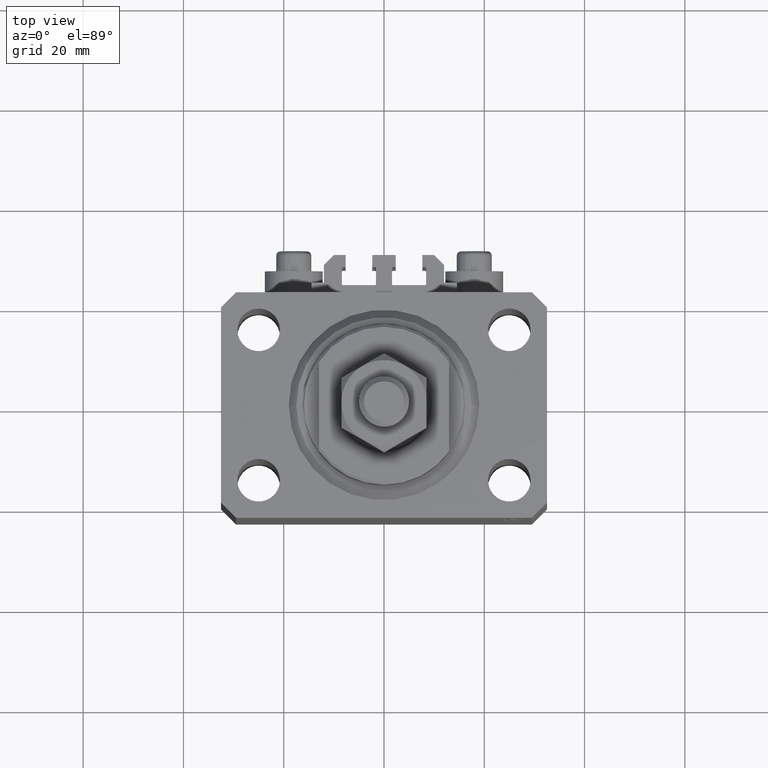
[diagram: clean part render]
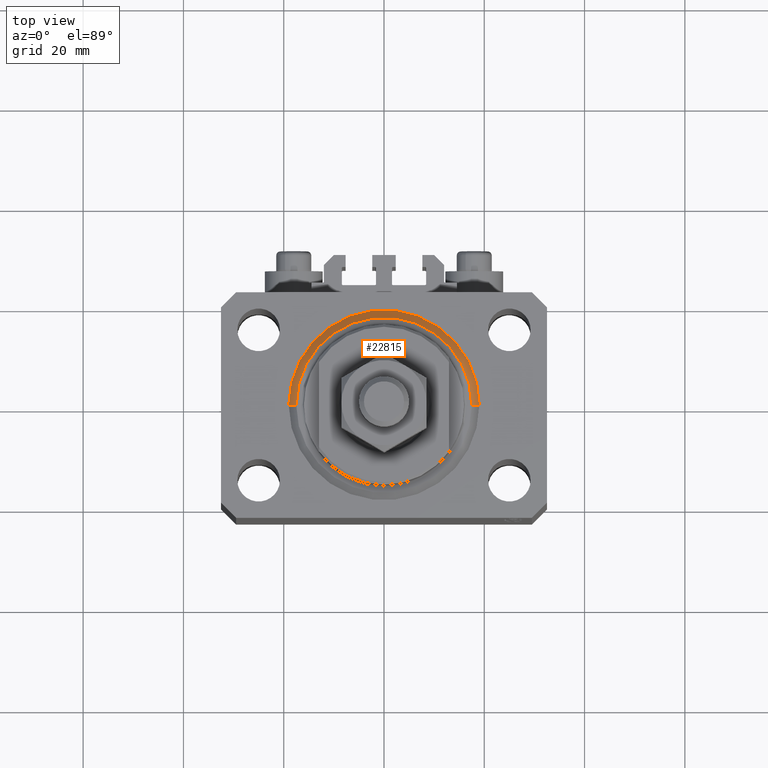
[diagram: same view with one face highlighted and labeled with its STEP entity id]
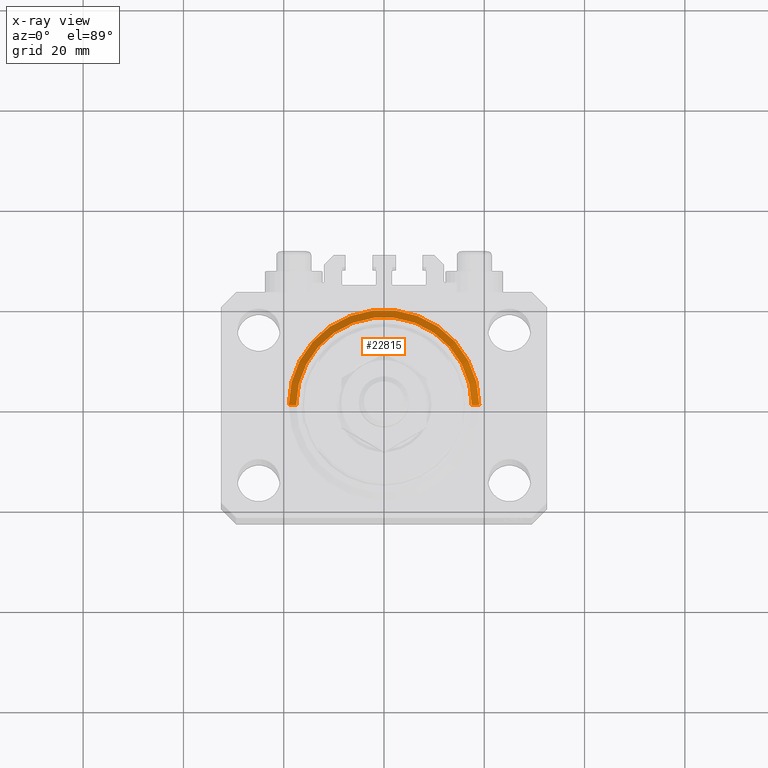
[diagram: x-ray of the same camera — body ghosted, the highlighted face saturated]
A machine part, top view. The second image highlights one B-rep face of the part: STEP entity #22815.
The next image is the same camera in x-ray: the body ghosted, the highlighted face saturated — about 0% of this face is hidden behind the body in this view.
In plain terms, the highlighted conical surface has half-angle 45 deg.
Its self-contained STEP definition (entity closure, byte-faithful):
#474 = VECTOR ( 'NONE', #24404, 1000.000000000000000 ) ;
#3435 = CARTESIAN_POINT ( 'NONE',  ( -19.00000000000000000, 0.000000000000000000, 1.500000000000001332 ) ) ;
#3512 = LINE ( 'NONE', #45876, #22213 ) ;
#3999 = DIRECTION ( 'NONE',  ( 0.7071067811865483499, 0.000000000000000000, 0.7071067811865467956 ) ) ;
#6258 = DIRECTION ( 'NONE',  ( 1.000000000000000000, 0.000000000000000000, 0.000000000000000000 ) ) ;
#7438 = EDGE_LOOP ( 'NONE', ( #23123, #17299, #14038, #12466 ) ) ;
#8278 = EDGE_CURVE ( 'NONE', #18800, #29032, #9289, .T. ) ;
#8824 = CIRCLE ( 'NONE', #27814, 19.00000000000000000 ) ;
#9289 = LINE ( 'NONE', #12514, #474 ) ;
#9973 = FACE_OUTER_BOUND ( 'NONE', #7438, .T. ) ;
#11167 = EDGE_CURVE ( 'NONE', #24179, #16987, #3512, .T. ) ;
#11925 = AXIS2_PLACEMENT_3D ( 'NONE', #18114, #43690, #6258 ) ;
#12466 = ORIENTED_EDGE ( 'NONE', *, *, #11167, .F. ) ;
#12514 = CARTESIAN_POINT ( 'NONE',  ( -19.00000000000000000, 2.326828918379970970E-15, 1.500000000000001332 ) ) ;
#14038 = ORIENTED_EDGE ( 'NONE', *, *, #24018, .F. ) ;
#14552 = DIRECTION ( 'NONE',  ( -0.000000000000000000, -0.000000000000000000, -1.000000000000000000 ) ) ;
#16987 = VERTEX_POINT ( 'NONE', #30391 ) ;
#17299 = ORIENTED_EDGE ( 'NONE', *, *, #8278, .T. ) ;
#18114 = CARTESIAN_POINT ( 'NONE',  ( 0.000000000000000000, 0.000000000000000000, 1.500000000000001332 ) ) ;
#18800 = VERTEX_POINT ( 'NONE', #30410 ) ;
#20119 = DIRECTION ( 'NONE',  ( 1.000000000000000000, 0.000000000000000000, 0.000000000000000000 ) ) ;
#22213 = VECTOR ( 'NONE', #3999, 1000.000000000000000 ) ;
#22815 = ADVANCED_FACE ( 'NONE', ( #9973 ), #33271, .T. ) ;
#23123 = ORIENTED_EDGE ( 'NONE', *, *, #33088, .F. ) ;
#23590 = DIRECTION ( 'NONE',  ( -0.000000000000000000, -0.000000000000000000, 1.000000000000000000 ) ) ;
#24018 = EDGE_CURVE ( 'NONE', #16987, #29032, #8824, .T. ) ;
#24179 = VERTEX_POINT ( 'NONE', #28975 ) ;
#24404 = DIRECTION ( 'NONE',  ( -0.7071067811865483499, 8.659560562354942719E-17, 0.7071067811865467956 ) ) ;
#27814 = AXIS2_PLACEMENT_3D ( 'NONE', #39444, #23590, #20119 ) ;
#28224 = CIRCLE ( 'NONE', #40880, 17.49999999999999645 ) ;
#28975 = CARTESIAN_POINT ( 'NONE',  ( 17.49999999999999645, 0.000000000000000000, 0.000000000000000000 ) ) ;
#29032 = VERTEX_POINT ( 'NONE', #3435 ) ;
#30391 = CARTESIAN_POINT ( 'NONE',  ( 19.00000000000000000, 2.326828918379970970E-15, 1.500000000000001332 ) ) ;
#30410 = CARTESIAN_POINT ( 'NONE',  ( -17.49999999999999645, 2.234980408443919215E-15, 0.000000000000000000 ) ) ;
#33088 = EDGE_CURVE ( 'NONE', #18800, #24179, #28224, .T. ) ;
#33271 = CONICAL_SURFACE ( 'NONE', #11925, 19.00000000000000000, 0.7853981633974492782 ) ;
#39444 = CARTESIAN_POINT ( 'NONE',  ( 0.000000000000000000, 0.000000000000000000, 1.500000000000001332 ) ) ;
#40880 = AXIS2_PLACEMENT_3D ( 'NONE', #48505, #14552, #44778 ) ;
#43690 = DIRECTION ( 'NONE',  ( -0.000000000000000000, -0.000000000000000000, 1.000000000000000000 ) ) ;
#44778 = DIRECTION ( 'NONE',  ( 1.000000000000000000, 0.000000000000000000, 0.000000000000000000 ) ) ;
#45876 = CARTESIAN_POINT ( 'NONE',  ( 19.00000000000000000, 0.000000000000000000, 1.500000000000001332 ) ) ;
#48505 = CARTESIAN_POINT ( 'NONE',  ( 0.000000000000000000, 0.000000000000000000, 0.000000000000000000 ) ) ;